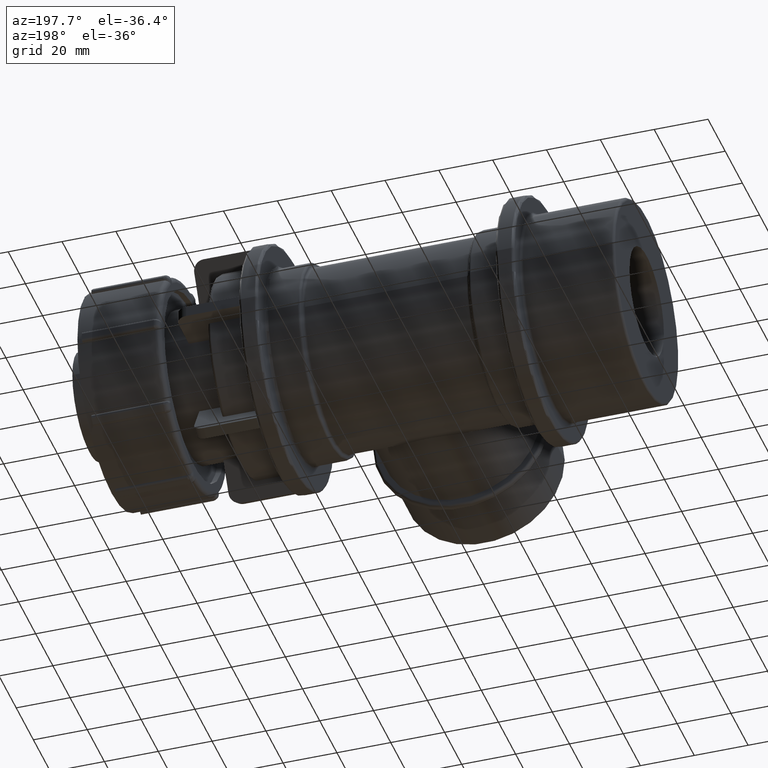
[diagram: clean part render]
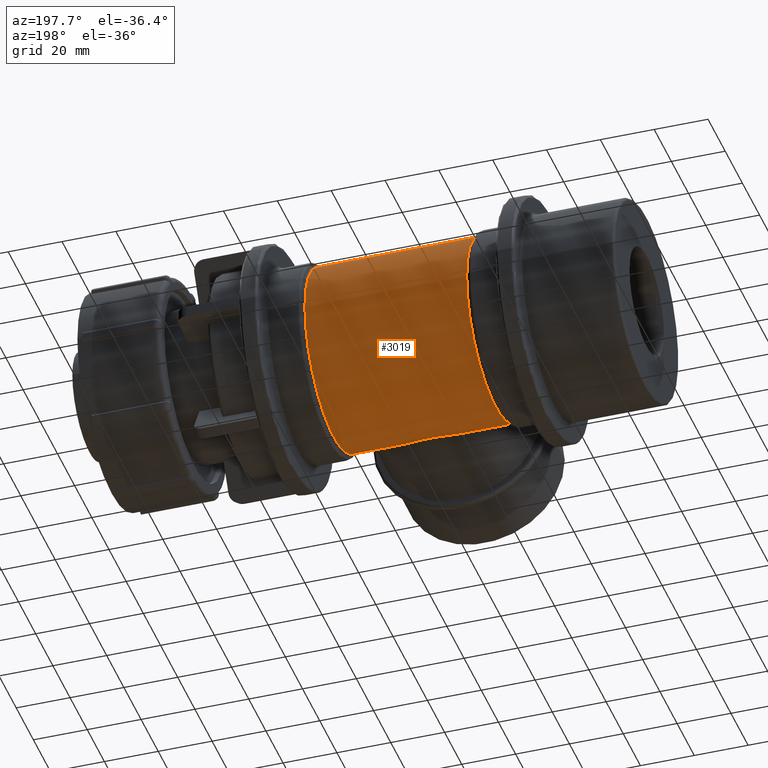
[diagram: same view with one face highlighted and labeled with its STEP entity id]
A machine part, auxiliary view. The second image highlights one B-rep face of the part: STEP entity #3019.
In plain terms, the highlighted cylindrical surface (bore or boss wall) has radius 33.75 mm, axis along (1, 0, 0).
Its self-contained STEP definition (entity closure, byte-faithful):
#524=CIRCLE('',#3253,33.75);
#525=CIRCLE('',#3255,33.75);
#752=FACE_BOUND('',#1039,.T.);
#753=FACE_BOUND('',#1040,.T.);
#812=FACE_OUTER_BOUND('',#1038,.T.);
#1038=EDGE_LOOP('',(#2092));
#1039=EDGE_LOOP('',(#2093));
#1040=EDGE_LOOP('',(#2094));
#1282=B_SPLINE_CURVE_WITH_KNOTS('',3,(#4559,#4560,#4561,#4562,#4563,#4564,
#4565,#4566,#4567,#4568,#4569,#4570,#4571,#4572,#4573,#4574,#4575,#4576,
#4577,#4578,#4579,#4580,#4581,#4582,#4583,#4584,#4585,#4586,#4587,#4588,
#4589,#4590,#4591,#4592,#4593,#4594,#4595,#4596,#4597,#4598,#4599,#4600,
#4601,#4602,#4603,#4604,#4605,#4606,#4607,#4608,#4609,#4610,#4611,#4612,
#4613,#4614,#4615,#4616,#4617,#4618,#4619,#4620,#4621,#4622,#4623,#4624),
 .UNSPECIFIED.,.T.,.F.,(4,2,2,2,2,2,2,2,2,2,2,2,2,2,2,2,2,2,2,2,2,2,2,2,
2,2,2,2,2,2,2,2,4),(0.,0.376239146417048,0.752478292834095,1.12871743925114,
1.50495658566819,1.87923749265059,2.253518399633,2.6277993066154,3.0020802135978,
3.37636112058021,3.75064202756261,4.12492293454501,4.49920384152742,4.87544298794446,
5.25168213436151,5.62792128077856,6.00416042719561,6.38039957361265,6.7566387200297,
7.13287786644675,7.5091170128638,7.8833979198462,8.2576788268286,8.63195973381101,
9.00624064079341,9.38052154777581,9.75480245475822,10.1290833617406,10.503364268723,
10.8796034151401,11.2558425615571,11.6320817079742,12.0083208543912),
 .UNSPECIFIED.);
#1334=VERTEX_POINT('',#4558);
#1349=VERTEX_POINT('',#4731);
#1350=VERTEX_POINT('',#4734);
#1628=EDGE_CURVE('',#1334,#1334,#1282,.T.);
#1643=EDGE_CURVE('',#1349,#1349,#524,.T.);
#1644=EDGE_CURVE('',#1350,#1350,#525,.T.);
#2092=ORIENTED_EDGE('',*,*,#1644,.F.);
#2093=ORIENTED_EDGE('',*,*,#1628,.T.);
#2094=ORIENTED_EDGE('',*,*,#1643,.F.);
#2940=CYLINDRICAL_SURFACE('',#3254,33.75);
#3019=ADVANCED_FACE('',(#812,#752,#753),#2940,.T.);
#3253=AXIS2_PLACEMENT_3D('',#4732,#3664,#3665);
#3254=AXIS2_PLACEMENT_3D('',#4733,#3666,#3667);
#3255=AXIS2_PLACEMENT_3D('',#4735,#3668,#3669);
#3664=DIRECTION('center_axis',(-1.,0.,0.));
#3665=DIRECTION('ref_axis',(0.,-1.,1.83697019872103E-16));
#3666=DIRECTION('center_axis',(1.,0.,0.));
#3667=DIRECTION('ref_axis',(0.,1.,0.));
#3668=DIRECTION('center_axis',(1.,0.,0.));
#3669=DIRECTION('ref_axis',(0.,1.,1.8490934548735E-14));
#4558=CARTESIAN_POINT('',(9.99200722162641E-15,-27.6349292073908,-19.37455));
#4559=CARTESIAN_POINT('Ctrl Pts',(9.99200722162641E-15,-27.6349292073908,
-19.37455));
#4560=CARTESIAN_POINT('Ctrl Pts',(-1.25413048805682,-27.6349292073908,-19.37455));
#4561=CARTESIAN_POINT('Ctrl Pts',(-2.53712371284234,-27.7228745599205,-19.2509322459232));
#4562=CARTESIAN_POINT('Ctrl Pts',(-5.06553409193054,-28.0674261641881,-18.7450194478234));
#4563=CARTESIAN_POINT('Ctrl Pts',(-6.31110364836717,-28.3232800705425,-18.3629740045551));
#4564=CARTESIAN_POINT('Ctrl Pts',(-8.68408425807808,-28.9446246365714,-17.3670846360636));
#4565=CARTESIAN_POINT('Ctrl Pts',(-9.81392111425656,-29.3097424664818,-16.7524360663838));
#4566=CARTESIAN_POINT('Ctrl Pts',(-11.8987579401292,-30.0720534048858,-15.3419920963244));
#4567=CARTESIAN_POINT('Ctrl Pts',(-12.8538177346012,-30.4685960253217,-14.5459336402744));
#4568=CARTESIAN_POINT('Ctrl Pts',(-14.5415301004965,-31.2182122616233,-12.8582212743791));
#4569=CARTESIAN_POINT('Ctrl Pts',(-15.3368908133513,-31.5996309927976,-11.9054119740955));
#4570=CARTESIAN_POINT('Ctrl Pts',(-16.7489971766982,-32.3085958430332,-9.81988532421552));
#4571=CARTESIAN_POINT('Ctrl Pts',(-17.3658470367875,-32.6356576570233,-8.68707392802752));
#4572=CARTESIAN_POINT('Ctrl Pts',(-18.3644122708305,-33.1777807836144,-6.30763582642913));
#4573=CARTESIAN_POINT('Ctrl Pts',(-18.7469322317927,-33.3930151351585,-5.05862894825699));
#4574=CARTESIAN_POINT('Ctrl Pts',(-19.2520952094894,-33.6792096354073,-2.52864093798603));
#4575=CARTESIAN_POINT('Ctrl Pts',(-19.37455,-33.75,-1.24760302327468));
#4576=CARTESIAN_POINT('Ctrl Pts',(-19.37455,-33.75,1.24760302327468));
#4577=CARTESIAN_POINT('Ctrl Pts',(-19.2520952094894,-33.6792096354073,2.52864093798602));
#4578=CARTESIAN_POINT('Ctrl Pts',(-18.7469322317927,-33.3930151351585,5.05862894825698));
#4579=CARTESIAN_POINT('Ctrl Pts',(-18.3644122708305,-33.1777807836144,6.30763582642912));
#4580=CARTESIAN_POINT('Ctrl Pts',(-17.3658470367875,-32.6356576570233,8.68707392802752));
#4581=CARTESIAN_POINT('Ctrl Pts',(-16.7489971766982,-32.3085958430332,9.81988532421552));
#4582=CARTESIAN_POINT('Ctrl Pts',(-15.3368908133513,-31.5996309927976,11.9054119740955));
#4583=CARTESIAN_POINT('Ctrl Pts',(-14.5415301004965,-31.2182122616233,12.8582212743791));
#4584=CARTESIAN_POINT('Ctrl Pts',(-12.8538177346012,-30.4685960253217,14.5459336402744));
#4585=CARTESIAN_POINT('Ctrl Pts',(-11.8987579401292,-30.0720534048858,15.3419920963244));
#4586=CARTESIAN_POINT('Ctrl Pts',(-9.81392111425656,-29.3097424664818,16.7524360663838));
#4587=CARTESIAN_POINT('Ctrl Pts',(-8.68408425807809,-28.9446246365714,17.3670846360636));
#4588=CARTESIAN_POINT('Ctrl Pts',(-6.31110364836717,-28.3232800705425,18.3629740045551));
#4589=CARTESIAN_POINT('Ctrl Pts',(-5.06553409193053,-28.0674261641881,18.7450194478234));
#4590=CARTESIAN_POINT('Ctrl Pts',(-2.53712371284234,-27.7228745599205,19.2509322459232));
#4591=CARTESIAN_POINT('Ctrl Pts',(-1.25413048805681,-27.6349292073908,19.37455));
#4592=CARTESIAN_POINT('Ctrl Pts',(1.25413048805683,-27.6349292073908,19.37455));
#4593=CARTESIAN_POINT('Ctrl Pts',(2.53712371284236,-27.7228745599205,19.2509322459232));
#4594=CARTESIAN_POINT('Ctrl Pts',(5.06553409193055,-28.0674261641881,18.7450194478234));
#4595=CARTESIAN_POINT('Ctrl Pts',(6.31110364836718,-28.3232800705425,18.3629740045551));
#4596=CARTESIAN_POINT('Ctrl Pts',(8.68408425807809,-28.9446246365714,17.3670846360636));
#4597=CARTESIAN_POINT('Ctrl Pts',(9.81392111425657,-29.3097424664818,16.7524360663838));
#4598=CARTESIAN_POINT('Ctrl Pts',(11.8987579401292,-30.0720534048858,15.3419920963244));
#4599=CARTESIAN_POINT('Ctrl Pts',(12.8538177346012,-30.4685960253217,14.5459336402744));
#4600=CARTESIAN_POINT('Ctrl Pts',(14.5415301004966,-31.2182122616233,12.8582212743791));
#4601=CARTESIAN_POINT('Ctrl Pts',(15.3368908133513,-31.5996309927976,11.9054119740955));
#4602=CARTESIAN_POINT('Ctrl Pts',(16.7489971766982,-32.3085958430332,9.81988532421553));
#4603=CARTESIAN_POINT('Ctrl Pts',(17.3658470367875,-32.6356576570233,8.68707392802752));
#4604=CARTESIAN_POINT('Ctrl Pts',(18.3644122708305,-33.1777807836144,6.30763582642913));
#4605=CARTESIAN_POINT('Ctrl Pts',(18.7469322317927,-33.3930151351585,5.05862894825699));
#4606=CARTESIAN_POINT('Ctrl Pts',(19.2520952094894,-33.6792096354073,2.52864093798602));
#4607=CARTESIAN_POINT('Ctrl Pts',(19.37455,-33.75,1.24760302327468));
#4608=CARTESIAN_POINT('Ctrl Pts',(19.37455,-33.75,-1.24760302327467));
#4609=CARTESIAN_POINT('Ctrl Pts',(19.2520952094894,-33.6792096354073,-2.52864093798601));
#4610=CARTESIAN_POINT('Ctrl Pts',(18.7469322317927,-33.3930151351585,-5.05862894825698));
#4611=CARTESIAN_POINT('Ctrl Pts',(18.3644122708305,-33.1777807836144,-6.30763582642911));
#4612=CARTESIAN_POINT('Ctrl Pts',(17.3658470367875,-32.6356576570233,-8.6870739280275));
#4613=CARTESIAN_POINT('Ctrl Pts',(16.7489971766982,-32.3085958430332,-9.81988532421551));
#4614=CARTESIAN_POINT('Ctrl Pts',(15.3368908133513,-31.5996309927976,-11.9054119740955));
#4615=CARTESIAN_POINT('Ctrl Pts',(14.5415301004966,-31.2182122616233,-12.8582212743791));
#4616=CARTESIAN_POINT('Ctrl Pts',(12.8538177346012,-30.4685960253217,-14.5459336402744));
#4617=CARTESIAN_POINT('Ctrl Pts',(11.8987579401293,-30.0720534048858,-15.3419920963244));
#4618=CARTESIAN_POINT('Ctrl Pts',(9.81392111425659,-29.3097424664818,-16.7524360663838));
#4619=CARTESIAN_POINT('Ctrl Pts',(8.6840842580781,-28.9446246365715,-17.3670846360636));
#4620=CARTESIAN_POINT('Ctrl Pts',(6.31110364836719,-28.3232800705425,-18.3629740045551));
#4621=CARTESIAN_POINT('Ctrl Pts',(5.06553409193055,-28.0674261641881,-18.7450194478234));
#4622=CARTESIAN_POINT('Ctrl Pts',(2.53712371284236,-27.7228745599205,-19.2509322459232));
#4623=CARTESIAN_POINT('Ctrl Pts',(1.25413048805684,-27.6349292073908,-19.37455));
#4624=CARTESIAN_POINT('Ctrl Pts',(1.0547118733939E-14,-27.6349292073908,
-19.37455));
#4731=CARTESIAN_POINT('',(-30.05,33.75,-1.03329573678058E-14));
#4732=CARTESIAN_POINT('Origin',(-30.05,0.,0.));
#4733=CARTESIAN_POINT('Origin',(0.,0.,0.));
#4734=CARTESIAN_POINT('',(30.0539100721661,-33.75,-6.28202223966927E-13));
#4735=CARTESIAN_POINT('Origin',(30.0539100721661,0.,0.));